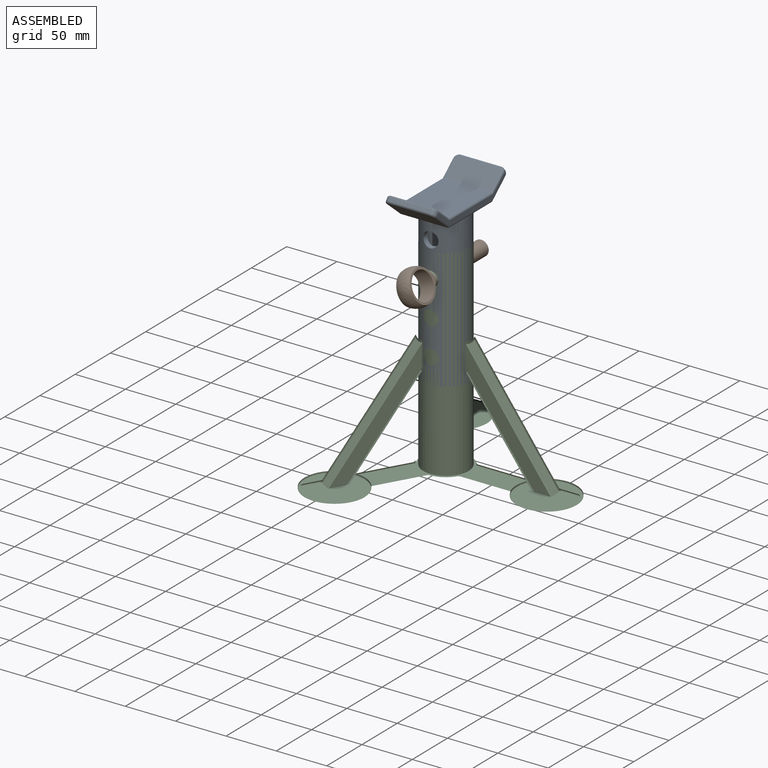
[diagram: assembled view]
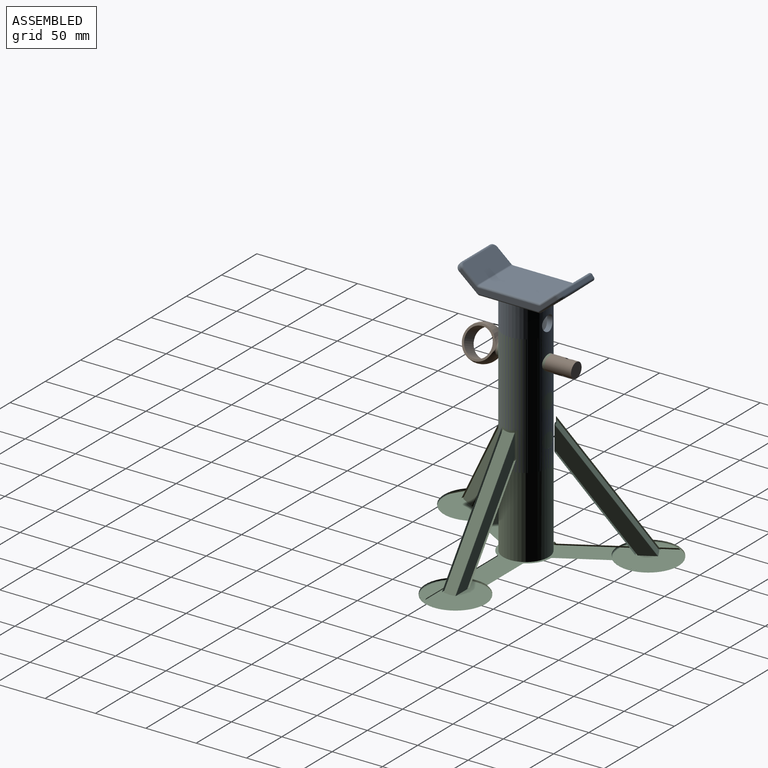
[diagram: assembled view, second angle]
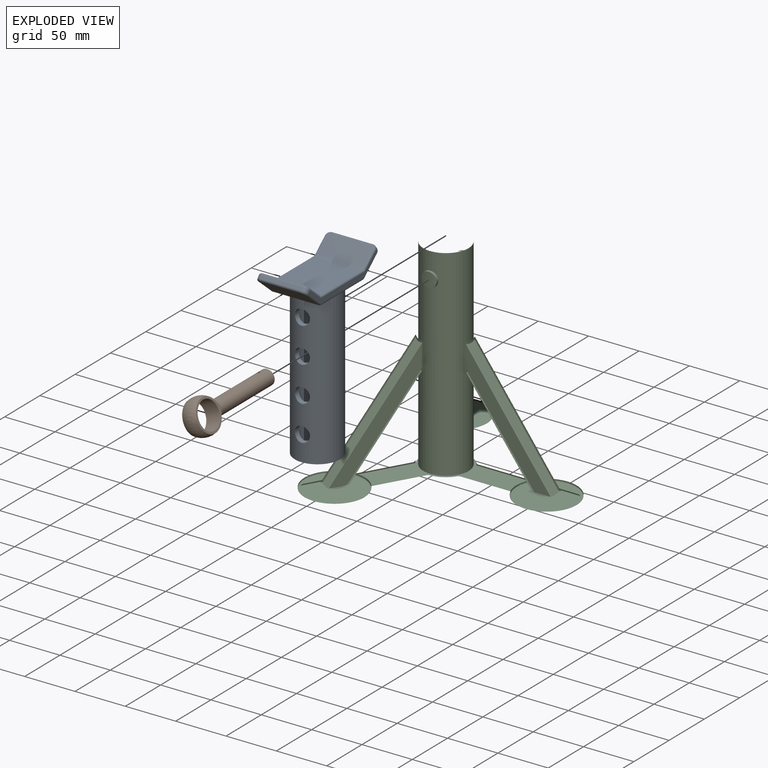
[diagram: exploded view]
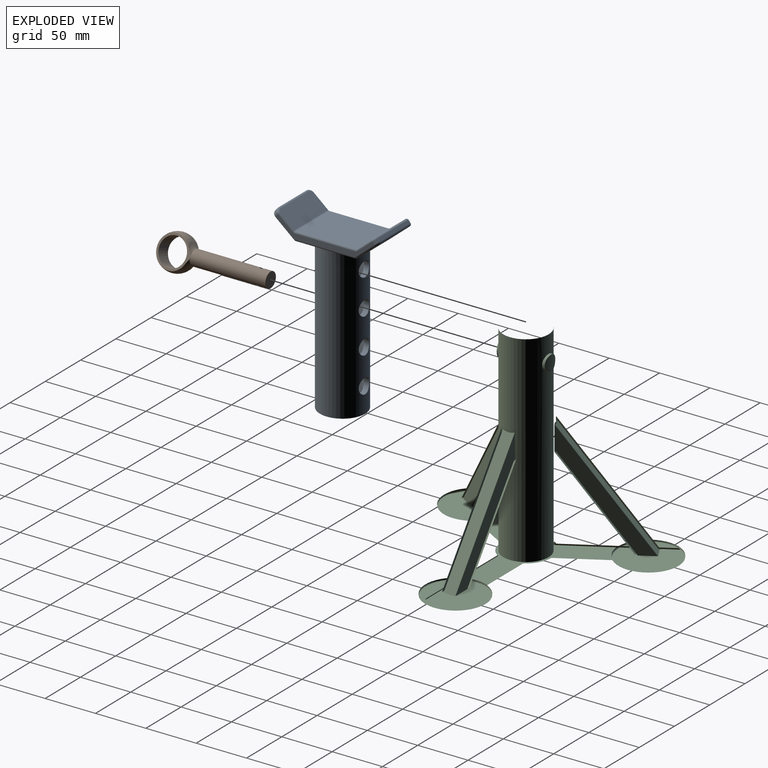
[diagram: exploded view, second angle]
ASSEMBLY  parts=3 mates=3
PART A: 62 faces, bbox 105.9x50.8x174.1 mm
  f0: plane 46x20.89mm, normal (-0.64,0,-0.77), area 1250.7mm2, adj f42,f43,f46,f49,f53,f56
  f1: plane 46x16.39mm, normal (0.64,0,0.77), area 980.5mm2, adj f22,f23,f25,f26,f55,f58
  f2: plane 46x20.89mm, normal (0.64,0,-0.77), area 1250.7mm2, adj f36,f37,f38,f39,f50,f59
  f3: plane 46x16.39mm, normal (-0.64,0,0.77), area 980.5mm2, adj f30,f32,f33,f35,f52,f61
  f4: cylinder r=7.5mm len=15mm, axis (1,0,0), area 244.8mm2, adj f10,f11
  f5: cylinder r=7.5mm len=15mm, axis (1,0,0), area 244.8mm2, adj f10,f11
  f6: cylinder r=7.5mm len=15mm, axis (1,0,0), area 244.8mm2, adj f10,f11
  f7: cylinder r=7.5mm len=15mm, axis (1,0,0), area 244.8mm2, adj f10,f11
  f8: cylinder r=7.5mm len=15mm, axis (1,0,0), area 244.8mm2, adj f10,f11
  f9: cylinder r=7.5mm len=15mm, axis (1,0,0), area 244.8mm2, adj f10,f11
  f10: cylinder r=17.5mm len=150mm, axis (0,0,-1), area 15043.3mm2, adj f4,f5,f6,f7,f8,f9,f12,f13
  f11: cylinder r=22.5mm len=150mm, axis (0,0,-1), area 19771.6mm2, adj f4,f5,f6,f7,f8,f9,f12,f13
  f12: plane 45x45mm, normal (0,0,-1), area 628.3mm2, adj f10,f11
  f13: cylinder r=7.5mm len=15mm, axis (1,0,0), area 244.8mm2, adj f10,f11
  f14: cylinder r=7.5mm len=15mm, axis (1,0,0), area 244.8mm2, adj f10,f11
  f15: plane 96.73x17.9mm, normal (0,1,0), area 446.3mm2, adj f22,f24,f27,f29,f30,f39,f45,f46
  f16: plane 96.73x17.9mm, normal (0,-1,0), area 446.3mm2, adj f25,f28,f31,f34,f35,f37,f43,f44
  f17: plane 40x2.3mm, normal (-0.77,0,0.64), area 120mm2, adj f23,f42,f54,f57
  f18: plane 59.54x46mm, normal (0,0,1), area 2739mm2, adj f26,f27,f31,f32
  f19: plane 40x2.3mm, normal (0.77,0,0.64), area 120mm2, adj f33,f36,f51,f60
  f20: plane 59.54x46mm, normal (0,0,-1), area 1148.6mm2, adj f11,f38,f44,f45,f49
  f21: plane 35x35mm, normal (0,0,-1), area 962.1mm2, adj f10
  f22: cylinder r=2mm len=15.38mm, axis (-0.77,0,0.64), area 57.8mm2, adj f1,f15,f24,f58
  f23: cylinder r=2mm len=40mm, axis (0,1,0), area 125.7mm2, adj f1,f17,f55,f58
  f24: torus R=4mm, axis (0,-1,0), area 6mm2, adj f15,f22,f26,f27
  f25: cylinder r=2mm len=15.38mm, axis (0.77,0,-0.64), area 57.8mm2, adj f1,f16,f28,f55
  f26: cylinder r=2mm len=46mm, axis (0,-1,0), area 64.2mm2, adj f1,f18,f24,f28
  f27: cylinder r=2mm len=59.54mm, axis (-1,0,0), area 187.1mm2, adj f15,f18,f24,f29
  f28: torus R=4mm, axis (0,-1,0), area 6mm2, adj f16,f25,f26,f31
  f29: torus R=4mm, axis (0,-1,0), area 6mm2, adj f15,f27,f30,f32
  f30: cylinder r=2mm len=15.38mm, axis (-0.77,0,-0.64), area 57.8mm2, adj f3,f15,f29,f61
  f31: cylinder r=2mm len=59.54mm, axis (1,0,0), area 187.1mm2, adj f16,f18,f28,f34
  f32: cylinder r=2mm len=46mm, axis (0,1,0), area 64.2mm2, adj f3,f18,f29,f34
  f33: cylinder r=2mm len=40mm, axis (0,1,0), area 125.7mm2, adj f3,f19,f52,f61
  f34: torus R=4mm, axis (0,-1,0), area 6mm2, adj f16,f31,f32,f35
  f35: cylinder r=2mm len=15.38mm, axis (0.77,0,0.64), area 57.8mm2, adj f3,f16,f34,f52
  f36: cylinder r=2mm len=40mm, axis (0,1,0), area 125.7mm2, adj f2,f19,f50,f59
  f37: cylinder r=2mm len=19.88mm, axis (-0.77,0,-0.64), area 76.3mm2, adj f2,f16,f40,f50
  f38: cylinder r=2mm len=46mm, axis (0,-1,0), area 64.2mm2, adj f2,f20,f40,f41
  f39: cylinder r=2mm len=19.88mm, axis (0.77,0,0.64), area 76.3mm2, adj f2,f15,f41,f59
  f40: sphere r=2mm, area 2.8mm2, adj f37,f38,f44
  f41: sphere r=2mm, area 2.8mm2, adj f38,f39,f45
  f42: cylinder r=2mm len=40mm, axis (0,1,0), area 125.7mm2, adj f0,f17,f53,f56
  f43: cylinder r=2mm len=19.88mm, axis (-0.77,0,0.64), area 76.3mm2, adj f0,f16,f47,f53
  f44: cylinder r=2mm len=59.54mm, axis (-1,0,0), area 187.1mm2, adj f16,f20,f40,f47
  f45: cylinder r=2mm len=59.54mm, axis (1,0,0), area 187.1mm2, adj f15,f20,f41,f48
  f46: cylinder r=2mm len=19.88mm, axis (0.77,0,-0.64), area 76.3mm2, adj f0,f15,f48,f56
  f47: sphere r=2mm, area 2.8mm2, adj f43,f44,f49
  f48: sphere r=2mm, area 2.8mm2, adj f45,f46,f49
  f49: cylinder r=2mm len=46mm, axis (0,1,0), area 64.2mm2, adj f0,f20,f47,f48
  f50: torus R=3mm, axis (-0.64,0,0.77), area 21.1mm2, adj f2,f36,f37,f51
  f51: cylinder r=5mm len=5.76mm, axis (0.64,0,-0.77), area 23.6mm2, adj f16,f19,f50,f52
  f52: torus R=3mm, axis (0.64,0,-0.77), area 21.1mm2, adj f3,f33,f35,f51
  f53: torus R=3mm, axis (-0.64,0,-0.77), area 21.1mm2, adj f0,f42,f43,f54
  f54: cylinder r=5mm len=5.76mm, axis (0.64,0,0.77), area 23.6mm2, adj f16,f17,f53,f55
  f55: torus R=3mm, axis (0.64,0,0.77), area 21.1mm2, adj f1,f23,f25,f54
  f56: torus R=3mm, axis (-0.64,0,-0.77), area 21.1mm2, adj f0,f42,f46,f57
  f57: cylinder r=5mm len=5.76mm, axis (-0.64,0,-0.77), area 23.6mm2, adj f15,f17,f56,f58
  f58: torus R=3mm, axis (0.64,0,0.77), area 21.1mm2, adj f1,f22,f23,f57
  f59: torus R=3mm, axis (-0.64,0,0.77), area 21.1mm2, adj f2,f36,f39,f60
  f60: cylinder r=5mm len=5.76mm, axis (-0.64,0,0.77), area 23.6mm2, adj f15,f19,f59,f61
  f61: torus R=3mm, axis (0.64,0,-0.77), area 21.1mm2, adj f3,f30,f33,f60
PART B: 9 faces, bbox 35.6x35.6x110 mm
  f0: cylinder r=7.5mm len=75mm, axis (0,0,-1), area 3494.5mm2, adj f1,f2,f4,f5
  f1: plane 15x15mm, normal (0,0,-1), area 176.7mm2, adj f0
  f2: cylinder r=2.5mm len=15mm, axis (0,-1,0), area 228.9mm2, adj f0
  f3: sphere r=17.5mm, area 1361.4mm2, adj f4,f5,f6,f7
  f4: torus R=16.43mm, axis (0,0,1), area 73.3mm2, adj f0,f3,f6,f7
  f5: torus R=16.43mm, axis (0,0,1), area 73.3mm2, adj f0,f3,f6,f7
  f6: plane 33.32x31.62mm, normal (-1,0,0), area 202.9mm2, adj f3,f4,f5,f8
  f7: plane 33.32x31.62mm, normal (1,0,0), area 202.9mm2, adj f3,f4,f5,f8
  f8: cylinder r=13.75mm len=27.5mm, axis (-1,0,0), area 1295.9mm2, adj f6,f7
PART C: 105 faces, bbox 314.9x338.1x302 mm
  f0: cylinder r=25mm len=28.13mm, axis (0,0,-1), area 409.8mm2, adj f1,f2,f3,f4,f5,f6,f7,f8
  f1: bspline ~136.11x87.92mm, area 320.1mm2, adj f0,f2,f8,f9
  f2: plane 114.53x72.88mm, normal (0.87,0.5,0), area 1658.3mm2, adj f0,f1,f3,f9
  f3: bspline ~116.6x76.92mm, area 409.6mm2, adj f0,f2,f4,f9
  f4: plane 116.52x79.64mm, normal (0.4,-0.7,-0.59), area 1582.9mm2, adj f0,f3,f5,f9
  f5: bspline ~136.11x87.92mm, area 409.6mm2, adj f0,f4,f6,f9
  f6: plane 114.53x72.88mm, normal (-0.87,-0.5,0), area 1658.3mm2, adj f0,f5,f7,f9
  f7: bspline ~136.11x89.33mm, area 320.1mm2, adj f0,f6,f8,f9
  f8: plane 89.3x62.32mm, normal (-0.4,0.7,0.59), area 1211.4mm2, adj f0,f1,f7,f9
  f9: plane 94.83x66.9mm, normal (0,0,-1), area 1716.7mm2, adj f1,f2,f3,f4,f5,f6,f7,f8
  f10: cylinder r=2mm len=89.53mm, axis (0.5,-0.87,0), area 314.3mm2, adj f9,f11,f14,f15,f16,f17,f18,f19
  f11: cylinder r=2mm len=21.34mm, axis (0.87,0.5,0), area 35.2mm2, adj f9,f10,f12,f15
  f12: cylinder r=2mm len=89.53mm, axis (-0.5,0.87,0), area 314.3mm2, adj f9,f11,f14,f15,f17,f18,f19,f20
  f13: torus R=27mm, axis (0,0,1), area 64.6mm2, adj f9,f16,f20,f21
  f14: plane 59x59mm, normal (0,0,-1), area 1394.2mm2, adj f10,f12,f15,f19
  f15: plane 22.04x13.55mm, normal (0.35,-0.61,-0.71), area 49.3mm2, adj f10,f11,f12,f14
  f16: bspline ~4.78x4.66mm, area 11.9mm2, adj f10,f13,f17,f21
  f17: plane 238.47x219.92mm, normal (0,0,1), area 3897.5mm2, adj f10,f12,f16,f18,f20,f21,f22,f23
  f18: cylinder r=30mm len=60mm, axis (0,0,1), area 201.4mm2, adj f10,f12,f17,f19,f33
  f19: torus R=29.5mm, axis (0,0,-1), area 126.9mm2, adj f10,f12,f14,f18
  f20: bspline ~5.29x4.4mm, area 11.9mm2, adj f12,f13,f17,f21
  f21: cylinder r=25mm len=50mm, axis (0,0,-1), area 315mm2, adj f13,f16,f17,f20,f22,f26,f27,f31
  f22: bspline ~4.59x4.4mm, area 11.9mm2, adj f17,f21,f23,f34
  f23: cylinder r=2mm len=102.22mm, axis (1,0,0), area 314.3mm2, adj f17,f22,f24,f36,f37,f38,f39,f40
  f24: cylinder r=30mm len=60mm, axis (0,0,1), area 201.4mm2, adj f17,f23,f25,f38,f41
  f25: cylinder r=2mm len=102.22mm, axis (-1,0,0), area 314.3mm2, adj f17,f24,f26,f36,f37,f38,f39,f40
  f26: bspline ~4.78x4.04mm, area 11.9mm2, adj f17,f21,f25,f34
  f27: bspline ~5.09x4.4mm, area 11.9mm2, adj f17,f21,f28,f35
  f28: cylinder r=2mm len=89.53mm, axis (-0.5,-0.87,0), area 314.3mm2, adj f17,f27,f29,f42,f43,f44,f45,f46
  f29: cylinder r=30mm len=60mm, axis (0,0,1), area 201.4mm2, adj f17,f28,f30,f44,f47
  f30: cylinder r=2mm len=89.53mm, axis (0.5,0.87,0), area 314.3mm2, adj f17,f29,f31,f42,f43,f44,f45,f46
  f31: bspline ~4.96x4.78mm, area 11.9mm2, adj f17,f21,f30,f35
  f32: cylinder r=22.5mm len=200mm, axis (0,0,-1), area 27916.2mm2, adj f17,f48,f49,f50
  f33: torus R=29.5mm, axis (0,0,-1), area 147.1mm2, adj f18,f51
  f34: torus R=27mm, axis (0,0,1), area 64.6mm2, adj f21,f22,f26,f39
  f35: torus R=27mm, axis (0,0,1), area 64.6mm2, adj f21,f27,f31,f45
  f36: plane 25.12x1.53mm, normal (-0.71,0,-0.71), area 49.3mm2, adj f23,f25,f37,f40
  f37: plane 59x56.22mm, normal (0,0,-1), area 1394.2mm2, adj f23,f25,f36,f38
  f38: torus R=29.5mm, axis (0,0,-1), area 126.9mm2, adj f23,f24,f25,f37
  f39: plane 97.36x21.06mm, normal (0,0,-1), area 1716.7mm2, adj f23,f25,f34,f40,f52,f53,f54,f55
  f40: cylinder r=2mm len=23.83mm, axis (0,-1,0), area 35.2mm2, adj f23,f25,f36,f39
  f41: torus R=29.5mm, axis (0,0,-1), area 147.1mm2, adj f24,f60
  f42: plane 22.04x13.55mm, normal (0.35,0.61,-0.71), area 49.3mm2, adj f28,f30,f43,f46
  f43: plane 59x59mm, normal (0,0,-1), area 1394.2mm2, adj f28,f30,f42,f44
  f44: torus R=29.5mm, axis (0,0,-1), area 126.9mm2, adj f28,f29,f30,f43
  f45: plane 94.83x66.9mm, normal (0,0,-1), area 1716.7mm2, adj f28,f30,f35,f46,f61,f62,f63,f64
  f46: cylinder r=2mm len=21.34mm, axis (-0.87,0.5,0), area 35.2mm2, adj f28,f30,f42,f45
  f47: torus R=29.5mm, axis (0,0,-1), area 147.1mm2, adj f29,f69
  f48: plane 150x150mm, normal (0,0,-1), area 373.1mm2, adj f32,f70
  f49: cylinder r=7.5mm len=15mm, axis (0,-1,0), area 120.9mm2, adj f32,f71
  f50: cylinder r=7.5mm len=15mm, axis (0,-1,0), area 121mm2, adj f32,f72
  f51: plane 59x59mm, normal (0,0,1), area 2734mm2, adj f33
  f52: bspline ~136.11x102mm, area 320.1mm2, adj f39,f53,f59,f73
  f53: plane 89.3x65.61mm, normal (0.81,0,0.59), area 1211.4mm2, adj f39,f52,f54,f73
  f54: bspline ~136.11x102mm, area 320.1mm2, adj f39,f53,f55,f73
  f55: plane 114.53x84.15mm, normal (0,-1,0), area 1658.3mm2, adj f39,f54,f56,f73
  f56: bspline ~136.11x102mm, area 409.6mm2, adj f39,f55,f57,f73
  f57: plane 116.52x85.61mm, normal (-0.81,0,-0.59), area 1582.9mm2, adj f39,f56,f58,f73
  f58: bspline ~136.11x102mm, area 409.6mm2, adj f39,f57,f59,f73
  f59: plane 114.53x84.15mm, normal (0,1,0), area 1658.3mm2, adj f39,f52,f58,f73
  f60: plane 59x59mm, normal (0,0,1), area 2734mm2, adj f41
  f61: bspline ~136.11x87.92mm, area 320.1mm2, adj f45,f62,f68,f74
  f62: plane 89.3x62.32mm, normal (-0.4,-0.7,0.59), area 1211.4mm2, adj f45,f61,f63,f74
  f63: bspline ~136.11x89.33mm, area 320.1mm2, adj f45,f62,f64,f74
  f64: plane 114.53x72.88mm, normal (-0.87,0.5,0), area 1658.3mm2, adj f45,f63,f65,f74
  f65: bspline ~116.6x75.18mm, area 409.6mm2, adj f45,f64,f66,f74
  f66: plane 116.52x79.64mm, normal (0.4,0.7,-0.59), area 1582.9mm2, adj f45,f65,f67,f74
  f67: bspline ~116.6x76.92mm, area 409.6mm2, adj f45,f66,f68,f74
  f68: plane 114.53x72.88mm, normal (0.87,-0.5,0), area 1658.3mm2, adj f45,f61,f67,f74
  f69: plane 59x59mm, normal (0,0,1), area 2734mm2, adj f47
  f70: cylinder r=25mm len=11.55mm, axis (0,0,-1), area 0mm2, adj f48
  f71: cylinder r=25mm len=15mm, axis (0,0,-1), area 178.8mm2, adj f49
  f72: cylinder r=25mm len=15mm, axis (0,0,-1), area 178.8mm2, adj f50
  f73: cylinder r=25mm len=28.13mm, axis (0,0,-1), area 409.8mm2, adj f52,f53,f54,f55,f56,f57,f58,f59
  f74: cylinder r=25mm len=28.13mm, axis (0,0,-1), area 409.8mm2, adj f61,f62,f63,f64,f65,f66,f67,f68
  f75: plane 91.34x63.62mm, normal (0.4,-0.7,-0.59), area 1239.2mm2, adj f76,f82,f83,f84
  f76: bspline ~136.11x87.29mm, area 81mm2, adj f75,f77,f83,f84
  f77: plane 113.96x72.51mm, normal (0.87,0.5,0), area 1649.2mm2, adj f76,f78,f83,f84
  f78: bspline ~136.11x86.93mm, area 100.9mm2, adj f77,f79,f83,f84
  f79: plane 114.48x78.34mm, normal (-0.4,0.7,0.59), area 1555.1mm2, adj f78,f80,f83,f84
  f80: bspline ~136.11x87.29mm, area 100.9mm2, adj f79,f81,f83,f84
  f81: plane 113.96x72.51mm, normal (-0.87,-0.5,0), area 1649.2mm2, adj f80,f82,f83,f84
  f82: bspline ~136.11x86.93mm, area 81mm2, adj f75,f81,f83,f84
  f83: plane 20.37x18.54mm, normal (0,0,-1), area 203.8mm2, adj f75,f76,f77,f78,f79,f80,f81,f82
  f84: cylinder r=25mm len=23.99mm, axis (0,0,-1), area 279.9mm2, adj f75,f76,f77,f78,f79,f80,f81,f82
  f85: plane 91.34x63.62mm, normal (0.4,0.7,-0.59), area 1239.2mm2, adj f86,f92,f93,f94
  f86: bspline ~136.11x86.93mm, area 81mm2, adj f85,f87,f93,f94
  f87: plane 113.96x72.51mm, normal (-0.87,0.5,0), area 1649.2mm2, adj f86,f88,f93,f94
  f88: bspline ~136.11x87.29mm, area 100.9mm2, adj f87,f89,f93,f94
  f89: plane 114.48x78.34mm, normal (-0.4,-0.7,0.59), area 1555.1mm2, adj f88,f90,f93,f94
  f90: bspline ~114.5x73.1mm, area 100.9mm2, adj f89,f91,f93,f94
  f91: plane 113.96x72.51mm, normal (0.87,-0.5,0), area 1649.2mm2, adj f90,f92,f93,f94
  f92: bspline ~136.11x87.29mm, area 81mm2, adj f85,f91,f93,f94
  f93: plane 20.37x18.54mm, normal (0,0,-1), area 203.8mm2, adj f85,f86,f87,f88,f89,f90,f91,f92
  f94: cylinder r=25mm len=23.99mm, axis (0,0,-1), area 279.9mm2, adj f85,f86,f87,f88,f89,f90,f91,f92
  f95: plane 91.34x67.11mm, normal (-0.81,0,-0.59), area 1239.2mm2, adj f96,f102,f103,f104
  f96: bspline ~136.11x100.5mm, area 81mm2, adj f95,f97,f103,f104
  f97: plane 113.96x83.73mm, normal (0,-1,0), area 1649.2mm2, adj f96,f98,f103,f104
  f98: bspline ~136.11x100.5mm, area 100.9mm2, adj f97,f99,f103,f104
  f99: plane 114.48x84.11mm, normal (0.81,0,0.59), area 1555.1mm2, adj f98,f100,f103,f104
  f100: bspline ~136.11x100.5mm, area 100.9mm2, adj f99,f101,f103,f104
  f101: plane 113.96x83.73mm, normal (0,1,0), area 1649.2mm2, adj f100,f102,f103,f104
  f102: bspline ~136.11x100.5mm, area 81mm2, adj f95,f101,f103,f104
  f103: plane 17.02x12.02mm, normal (0,0,-1), area 203.8mm2, adj f95,f96,f97,f98,f99,f100,f101,f102
  f104: cylinder r=25mm len=23.99mm, axis (0,0,-1), area 279.9mm2, adj f95,f96,f97,f98,f99,f100,f101,f102
PLACE A rot(axis=(0,0,-1),90deg) t=(-193.56,-83,-217.05)mm
PLACE B rot(axis=(0.96,-0.21,0.21),92.5deg) t=(-193.56,-33,-122.05)mm
PLACE C t=(-193.56,-83,-297.05)mm fixed
MATE cylindrical A.f6 <-> C.f49  axis (0,-1,0) through (-193.56,-105.56,-122.05)mm
MATE cylindrical C.f32 <-> A.f10  axis (0,0,-1) through (-193.56,-83,-97.05)mm
MATE cylindrical B.f0 <-> C.f49  axis (0,1,0) through (-193.56,-33,-122.05)mm
